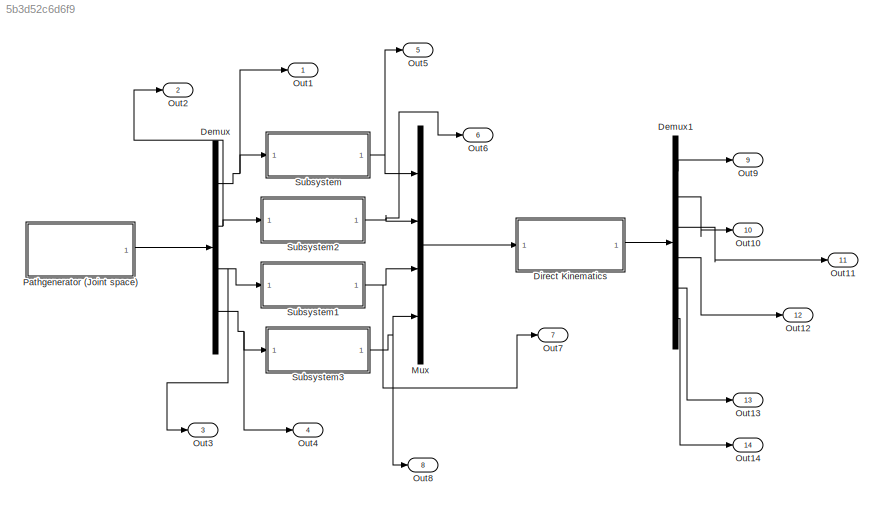
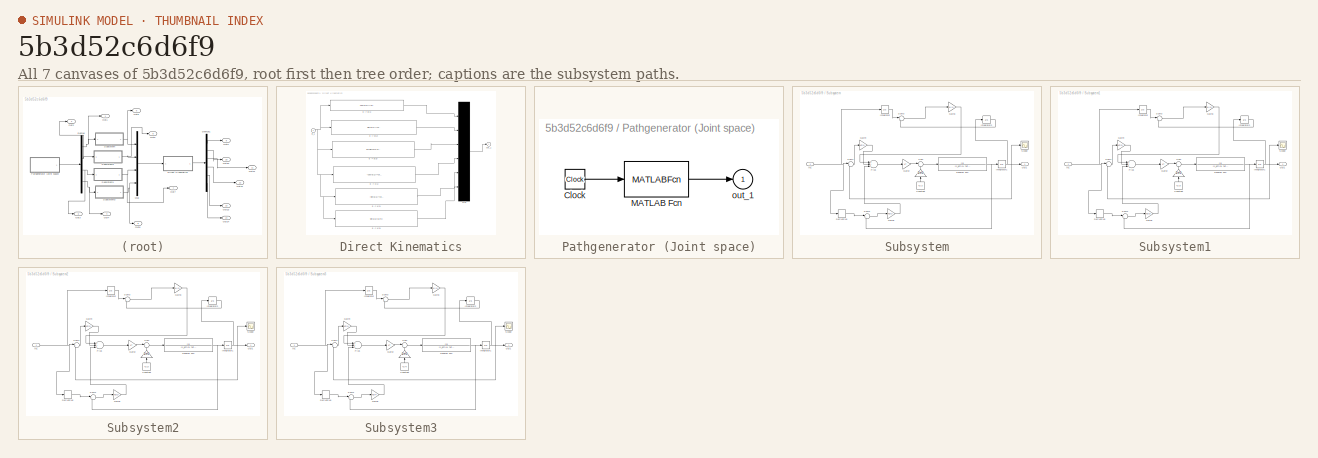
[diagram: thumbnail index - all 7 canvases of the model, root first then tree order]
MODEL slx_5b3d52c6d6f9
KIND model
CONFIG AbsTol = auto
CONFIG EnableMultiTasking = off
CONFIG FixedStep = auto
CONFIG MaxStep = auto
CONFIG MinStep = auto
CONFIG RelTol = 1e-3
CONFIG SampleTimeConstraint = Unconstrained
CONFIG Solver = VariableStepAuto
CONFIG SolverName = VariableStepAuto
CONFIG StartTime = 0.0
CONFIG StopTime = 10.0
BLOCK [Demux] Demux
  DisplayOption = bar
  Ports = [1, 4]
BLOCK [Demux] Demux1
  DisplayOption = bar
  Outputs = 6
  Ports = [1, 6]
BLOCK [SubSystem] Direct Kinematics
  Ports = [1, 1]
  RequestExecContextInheritance = off
  ShowPortLabels = none
BLOCK [Mux] Direct Kinematics/Mux
  Inputs = 6
  Ports = [6, 1]
BLOCK [Inport] Direct Kinematics/in_1
  IconDisplay = Port number
BLOCK [Outport] Direct Kinematics/out_1
  IconDisplay = Port number
  InitialOutput = 0
BLOCK [Fcn] Direct Kinematics/q -> p(1)
  Expr = cos(u[1])*(sin(u[2])*u[3]-a4*cos(u[2]+u[4]) )
BLOCK [Fcn] Direct Kinematics/q -> p(2)
  Expr = sin(u[1])*(sin(u[2])*u[3]-a4*cos(u[2]+u[4]))
BLOCK [Fcn] Direct Kinematics/q -> p(3)
  Expr = a4*sin(u[2]+u[4]) + cos(u[2])*u[3]+d1
BLOCK [Fcn] Direct Kinematics/q -> x(1)
  Expr = -cos(u[1])*cos(u[2]+u[4])
BLOCK [Fcn] Direct Kinematics/q -> x(2)
  Expr = -sin(u[1])*cos(u[2]+u[4])
BLOCK [Fcn] Direct Kinematics/q -> x(3)
  Expr = sin(u[2]+u[4])
BLOCK [Mux] Mux
  DisplayOption = bar
  Ports = [4, 1]
BLOCK [Outport] Out1
  IconDisplay = Port number
BLOCK [Outport] Out10
  IconDisplay = Port number
  Port = 10
BLOCK [Outport] Out11
  IconDisplay = Port number
  Port = 11
BLOCK [Outport] Out12
  IconDisplay = Port number
  Port = 12
BLOCK [Outport] Out13
  IconDisplay = Port number
  Port = 13
BLOCK [Outport] Out14
  IconDisplay = Port number
  Port = 14
BLOCK [Outport] Out2
  IconDisplay = Port number
  Port = 2
BLOCK [Outport] Out3
  IconDisplay = Port number
  Port = 3
BLOCK [Outport] Out4
  IconDisplay = Port number
  Port = 4
BLOCK [Outport] Out5
  IconDisplay = Port number
  Port = 5
BLOCK [Outport] Out6
  IconDisplay = Port number
  Port = 6
BLOCK [Outport] Out7
  IconDisplay = Port number
  Port = 7
BLOCK [Outport] Out8
  IconDisplay = Port number
  Port = 8
BLOCK [Outport] Out9
  IconDisplay = Port number
  Port = 9
BLOCK [SubSystem] Pathgenerator (Joint space)
  Ports = [0, 1]
  RequestExecContextInheritance = off
  ShowPortLabels = none
BLOCK [Clock] Pathgenerator (Joint space)/Clock
BLOCK [MATLABFcn] Pathgenerator (Joint space)/MATLAB Fcn
  MATLABFcn = J_path
  OutputDimensions = 4
  Ports = [1, 1]
BLOCK [Outport] Pathgenerator (Joint space)/out_1
  IconDisplay = Port number
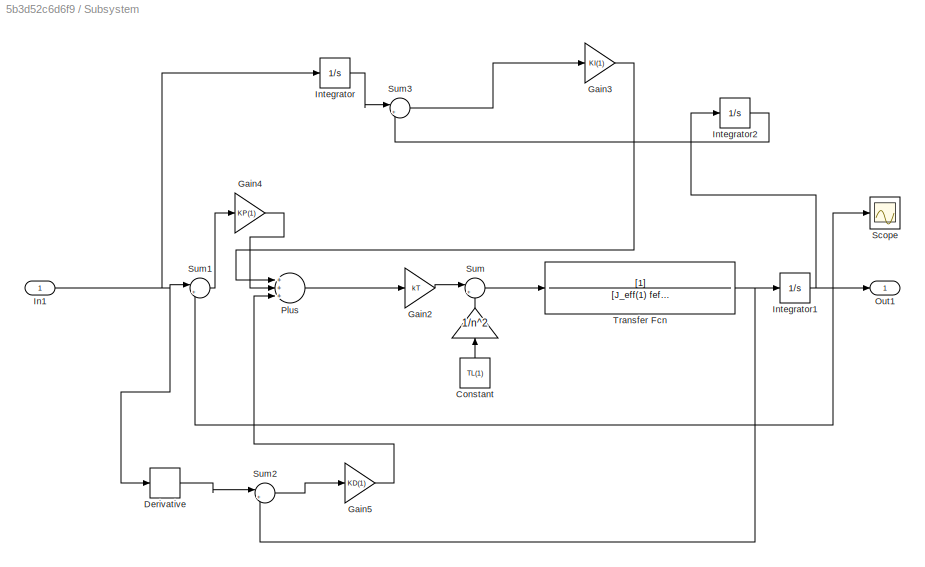
BLOCK [SubSystem] Subsystem
  Ports = [1, 1]
  RequestExecContextInheritance = off
BLOCK [Gain] Subsystem/ 
  Gain = 1/n^2
  OutDataTypeStr = Inherit: Inherit via internal rule
  ParamDataTypeStr = Inherit: Inherit via internal rule
  SaturateOnIntegerOverflow = off
BLOCK [Constant] Subsystem/Constant
  Value = TL(1)
BLOCK [Derivative] Subsystem/Derivative
BLOCK [Gain] Subsystem/Gain2
  Gain = kT
  OutDataTypeStr = Inherit: Inherit via internal rule
  ParamDataTypeStr = Inherit: Inherit via internal rule
  SaturateOnIntegerOverflow = off
BLOCK [Gain] Subsystem/Gain3
  Gain = KI(1)
  OutDataTypeStr = Inherit: Inherit via internal rule
  ParamDataTypeStr = Inherit: Inherit via internal rule
  SaturateOnIntegerOverflow = off
BLOCK [Gain] Subsystem/Gain4
  Gain = KP(1)
  OutDataTypeStr = Inherit: Inherit via internal rule
  ParamDataTypeStr = Inherit: Inherit via internal rule
  SaturateOnIntegerOverflow = off
BLOCK [Gain] Subsystem/Gain5
  Gain = KD(1)
  OutDataTypeStr = Inherit: Inherit via internal rule
  ParamDataTypeStr = Inherit: Inherit via internal rule
  SaturateOnIntegerOverflow = off
BLOCK [Inport] Subsystem/In1
  IconDisplay = Port number
BLOCK [Integrator] Subsystem/Integrator
  Ports = [1, 1]
BLOCK [Integrator] Subsystem/Integrator1
  Ports = [1, 1]
BLOCK [Integrator] Subsystem/Integrator2
  Ports = [1, 1]
BLOCK [Outport] Subsystem/Out1
  IconDisplay = Port number
BLOCK [Sum] Subsystem/Plus
  InputSameDT = off
  Inputs = +++
  OutDataTypeStr = Inherit: Inherit via internal rule
  Ports = [3, 1]
  SaturateOnIntegerOverflow = off
BLOCK [Scope] Subsystem/Scope
  Floating = off
  NumInputPorts = 1
  Ports = [1]
  ScopeSpecificationString = Simulink.scopes.TimeScopeBlockCfg('CurrentConfiguration', extmgr.ConfigurationSet(extmgr.Configuration('Core','General UI',true),extmgr.Configuration('Core','Source UI',true),extmgr.Configuration('Sources','WiredSimulink',true),extmgr.Configuration('Visuals','Time Domain',true,'SerializedDisplays',{struct('MinYLimReal','-0.04969','MaxYLimReal','0.44718','YLabelReal','','MinYLimMag','0.00000','MaxY...<+1373ch>  <repeated x4 — deduplicated; at blocks: Scope>
BLOCK [Sum] Subsystem/Sum
  IconShape = round
  InputSameDT = off
  Inputs = |+-
  OutDataTypeStr = Inherit: Inherit via internal rule
  Ports = [2, 1]
  SaturateOnIntegerOverflow = off
BLOCK [Sum] Subsystem/Sum1
  IconShape = round
  InputSameDT = off
  Inputs = |+-
  OutDataTypeStr = Inherit: Inherit via internal rule
  Ports = [2, 1]
  SaturateOnIntegerOverflow = off
BLOCK [Sum] Subsystem/Sum2
  IconShape = round
  InputSameDT = off
  Inputs = |+-
  OutDataTypeStr = Inherit: Inherit via internal rule
  Ports = [2, 1]
  SaturateOnIntegerOverflow = off
BLOCK [Sum] Subsystem/Sum3
  IconShape = round
  InputSameDT = off
  Inputs = |+-
  OutDataTypeStr = Inherit: Inherit via internal rule
  Ports = [2, 1]
  SaturateOnIntegerOverflow = off
BLOCK [TransferFcn] Subsystem/Transfer Fcn
  Denominator = [J_eff(1) feff]
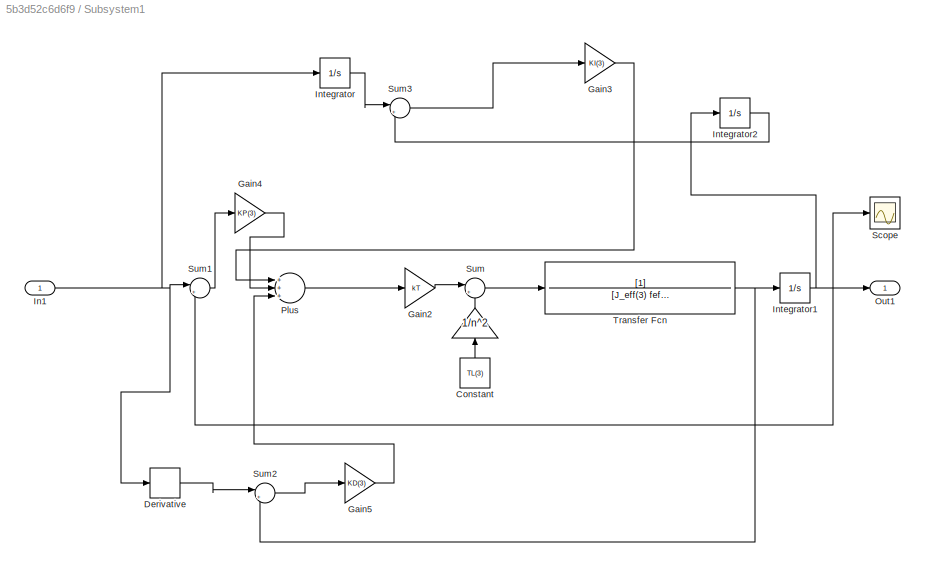
BLOCK [SubSystem] Subsystem1
  Ports = [1, 1]
  RequestExecContextInheritance = off
BLOCK [Gain] Subsystem1/ 
  Gain = 1/n^2
  OutDataTypeStr = Inherit: Inherit via internal rule
  ParamDataTypeStr = Inherit: Inherit via internal rule
  SaturateOnIntegerOverflow = off
BLOCK [Constant] Subsystem1/Constant
  Value = TL(3)
BLOCK [Derivative] Subsystem1/Derivative
BLOCK [Gain] Subsystem1/Gain2
  Gain = kT
  OutDataTypeStr = Inherit: Inherit via internal rule
  ParamDataTypeStr = Inherit: Inherit via internal rule
  SaturateOnIntegerOverflow = off
BLOCK [Gain] Subsystem1/Gain3
  Gain = KI(3)
  OutDataTypeStr = Inherit: Inherit via internal rule
  ParamDataTypeStr = Inherit: Inherit via internal rule
  SaturateOnIntegerOverflow = off
BLOCK [Gain] Subsystem1/Gain4
  Gain = KP(3)
  OutDataTypeStr = Inherit: Inherit via internal rule
  ParamDataTypeStr = Inherit: Inherit via internal rule
  SaturateOnIntegerOverflow = off
BLOCK [Gain] Subsystem1/Gain5
  Gain = KD(3)
  OutDataTypeStr = Inherit: Inherit via internal rule
  ParamDataTypeStr = Inherit: Inherit via internal rule
  SaturateOnIntegerOverflow = off
BLOCK [Inport] Subsystem1/In1
  IconDisplay = Port number
BLOCK [Integrator] Subsystem1/Integrator
  Ports = [1, 1]
BLOCK [Integrator] Subsystem1/Integrator1
  Ports = [1, 1]
BLOCK [Integrator] Subsystem1/Integrator2
  Ports = [1, 1]
BLOCK [Outport] Subsystem1/Out1
  IconDisplay = Port number
BLOCK [Sum] Subsystem1/Plus
  InputSameDT = off
  Inputs = +++
  OutDataTypeStr = Inherit: Inherit via internal rule
  Ports = [3, 1]
  SaturateOnIntegerOverflow = off
BLOCK [Scope] Subsystem1/Scope
  Floating = off
  NumInputPorts = 1
  Ports = [1]
BLOCK [Sum] Subsystem1/Sum
  IconShape = round
  InputSameDT = off
  Inputs = |+-
  OutDataTypeStr = Inherit: Inherit via internal rule
  Ports = [2, 1]
  SaturateOnIntegerOverflow = off
BLOCK [Sum] Subsystem1/Sum1
  IconShape = round
  InputSameDT = off
  Inputs = |+-
  OutDataTypeStr = Inherit: Inherit via internal rule
  Ports = [2, 1]
  SaturateOnIntegerOverflow = off
BLOCK [Sum] Subsystem1/Sum2
  IconShape = round
  InputSameDT = off
  Inputs = |+-
  OutDataTypeStr = Inherit: Inherit via internal rule
  Ports = [2, 1]
  SaturateOnIntegerOverflow = off
BLOCK [Sum] Subsystem1/Sum3
  IconShape = round
  InputSameDT = off
  Inputs = |+-
  OutDataTypeStr = Inherit: Inherit via internal rule
  Ports = [2, 1]
  SaturateOnIntegerOverflow = off
BLOCK [TransferFcn] Subsystem1/Transfer Fcn
  Denominator = [J_eff(3) feff]
BLOCK [SubSystem] Subsystem2
  Ports = [1, 1]
  RequestExecContextInheritance = off
BLOCK [Gain] Subsystem2/ 
  Gain = 1/n^2
  OutDataTypeStr = Inherit: Inherit via internal rule
  ParamDataTypeStr = Inherit: Inherit via internal rule
  SaturateOnIntegerOverflow = off
BLOCK [Constant] Subsystem2/Constant
  Value = TL(2)
BLOCK [Derivative] Subsystem2/Derivative
BLOCK [Gain] Subsystem2/Gain2
  Gain = kT
  OutDataTypeStr = Inherit: Inherit via internal rule
  ParamDataTypeStr = Inherit: Inherit via internal rule
  SaturateOnIntegerOverflow = off
BLOCK [Gain] Subsystem2/Gain3
  Gain = KI(2)
  OutDataTypeStr = Inherit: Inherit via internal rule
  ParamDataTypeStr = Inherit: Inherit via internal rule
  SaturateOnIntegerOverflow = off
BLOCK [Gain] Subsystem2/Gain4
  Gain = KP(2)
  OutDataTypeStr = Inherit: Inherit via internal rule
  ParamDataTypeStr = Inherit: Inherit via internal rule
  SaturateOnIntegerOverflow = off
BLOCK [Gain] Subsystem2/Gain5
  Gain = KD(2)
  OutDataTypeStr = Inherit: Inherit via internal rule
  ParamDataTypeStr = Inherit: Inherit via internal rule
  SaturateOnIntegerOverflow = off
BLOCK [Inport] Subsystem2/In1
  IconDisplay = Port number
BLOCK [Integrator] Subsystem2/Integrator
  Ports = [1, 1]
BLOCK [Integrator] Subsystem2/Integrator1
  Ports = [1, 1]
BLOCK [Integrator] Subsystem2/Integrator2
  Ports = [1, 1]
BLOCK [Outport] Subsystem2/Out1
  IconDisplay = Port number
BLOCK [Sum] Subsystem2/Plus
  InputSameDT = off
  Inputs = +++
  OutDataTypeStr = Inherit: Inherit via internal rule
  Ports = [3, 1]
  SaturateOnIntegerOverflow = off
BLOCK [Scope] Subsystem2/Scope
  Floating = off
  NumInputPorts = 1
  Ports = [1]
BLOCK [Sum] Subsystem2/Sum
  IconShape = round
  InputSameDT = off
  Inputs = |+-
  OutDataTypeStr = Inherit: Inherit via internal rule
  Ports = [2, 1]
  SaturateOnIntegerOverflow = off
BLOCK [Sum] Subsystem2/Sum1
  IconShape = round
  InputSameDT = off
  Inputs = |+-
  OutDataTypeStr = Inherit: Inherit via internal rule
  Ports = [2, 1]
  SaturateOnIntegerOverflow = off
BLOCK [Sum] Subsystem2/Sum2
  IconShape = round
  InputSameDT = off
  Inputs = |+-
  OutDataTypeStr = Inherit: Inherit via internal rule
  Ports = [2, 1]
  SaturateOnIntegerOverflow = off
BLOCK [Sum] Subsystem2/Sum3
  IconShape = round
  InputSameDT = off
  Inputs = |+-
  OutDataTypeStr = Inherit: Inherit via internal rule
  Ports = [2, 1]
  SaturateOnIntegerOverflow = off
BLOCK [TransferFcn] Subsystem2/Transfer Fcn
  Denominator = [J_eff(2) feff]
BLOCK [SubSystem] Subsystem3
  Ports = [1, 1]
  RequestExecContextInheritance = off
BLOCK [Gain] Subsystem3/ 
  Gain = 1/n^2
  OutDataTypeStr = Inherit: Inherit via internal rule
  ParamDataTypeStr = Inherit: Inherit via internal rule
  SaturateOnIntegerOverflow = off
BLOCK [Constant] Subsystem3/Constant
  Value = TL(4)
BLOCK [Derivative] Subsystem3/Derivative
BLOCK [Gain] Subsystem3/Gain2
  Gain = kT
  OutDataTypeStr = Inherit: Inherit via internal rule
  ParamDataTypeStr = Inherit: Inherit via internal rule
  SaturateOnIntegerOverflow = off
BLOCK [Gain] Subsystem3/Gain3
  Gain = KI(4)
  OutDataTypeStr = Inherit: Inherit via internal rule
  ParamDataTypeStr = Inherit: Inherit via internal rule
  SaturateOnIntegerOverflow = off
BLOCK [Gain] Subsystem3/Gain4
  Gain = KP(4)
  OutDataTypeStr = Inherit: Inherit via internal rule
  ParamDataTypeStr = Inherit: Inherit via internal rule
  SaturateOnIntegerOverflow = off
BLOCK [Gain] Subsystem3/Gain5
  Gain = KD(4)
  OutDataTypeStr = Inherit: Inherit via internal rule
  ParamDataTypeStr = Inherit: Inherit via internal rule
  SaturateOnIntegerOverflow = off
BLOCK [Inport] Subsystem3/In1
  IconDisplay = Port number
BLOCK [Integrator] Subsystem3/Integrator
  Ports = [1, 1]
BLOCK [Integrator] Subsystem3/Integrator1
  Ports = [1, 1]
BLOCK [Integrator] Subsystem3/Integrator2
  Ports = [1, 1]
BLOCK [Outport] Subsystem3/Out1
  IconDisplay = Port number
BLOCK [Sum] Subsystem3/Plus
  InputSameDT = off
  Inputs = +++
  OutDataTypeStr = Inherit: Inherit via internal rule
  Ports = [3, 1]
  SaturateOnIntegerOverflow = off
BLOCK [Scope] Subsystem3/Scope
  Floating = off
  NumInputPorts = 1
  Ports = [1]
BLOCK [Sum] Subsystem3/Sum
  IconShape = round
  InputSameDT = off
  Inputs = |+-
  OutDataTypeStr = Inherit: Inherit via internal rule
  Ports = [2, 1]
  SaturateOnIntegerOverflow = off
BLOCK [Sum] Subsystem3/Sum1
  IconShape = round
  InputSameDT = off
  Inputs = |+-
  OutDataTypeStr = Inherit: Inherit via internal rule
  Ports = [2, 1]
  SaturateOnIntegerOverflow = off
BLOCK [Sum] Subsystem3/Sum2
  IconShape = round
  InputSameDT = off
  Inputs = |+-
  OutDataTypeStr = Inherit: Inherit via internal rule
  Ports = [2, 1]
  SaturateOnIntegerOverflow = off
BLOCK [Sum] Subsystem3/Sum3
  IconShape = round
  InputSameDT = off
  Inputs = |+-
  OutDataTypeStr = Inherit: Inherit via internal rule
  Ports = [2, 1]
  SaturateOnIntegerOverflow = off
BLOCK [TransferFcn] Subsystem3/Transfer Fcn
  Denominator = [J_eff(4) feff]
LINE Demux1:1 -> Out9:1
LINE Demux1:2 -> Out10:1
LINE Demux1:3 -> Out11:1
LINE Demux1:4 -> Out12:1
LINE Demux1:5 -> Out13:1
LINE Demux1:6 -> Out14:1
NET Demux:1 -> Out1:1, Subsystem:1
NET Demux:2 -> Out2:1, Subsystem2:1
NET Demux:3 -> Out3:1, Subsystem1:1
NET Demux:4 -> Out4:1, Subsystem3:1
LINE Direct Kinematics/Mux:1 -> Direct Kinematics/out_1:1
NET Direct Kinematics/in_1:1 -> Direct Kinematics/q -> p(1):1, Direct Kinematics/q -> p(2):1, Direct Kinematics/q -> p(3):1, Direct Kinematics/q -> x(1):1, Direct Kinematics/q -> x(2):1, Direct Kinematics/q -> x(3):1
LINE Direct Kinematics/q -> p(1):1 -> Direct Kinematics/Mux:1
LINE Direct Kinematics/q -> p(2):1 -> Direct Kinematics/Mux:2
LINE Direct Kinematics/q -> p(3):1 -> Direct Kinematics/Mux:3
LINE Direct Kinematics/q -> x(1):1 -> Direct Kinematics/Mux:4
LINE Direct Kinematics/q -> x(2):1 -> Direct Kinematics/Mux:5
LINE Direct Kinematics/q -> x(3):1 -> Direct Kinematics/Mux:6
LINE Direct Kinematics:1 -> Demux1:1
LINE Mux:1 -> Direct Kinematics:1
LINE Pathgenerator (Joint space)/Clock:1 -> Pathgenerator (Joint space)/MATLAB Fcn:1
LINE Pathgenerator (Joint space)/MATLAB Fcn:1 -> Pathgenerator (Joint space)/out_1:1
LINE Pathgenerator (Joint space):1 -> Demux:1
LINE Subsystem/ :1 -> Subsystem/Sum:2
LINE Subsystem/Constant:1 -> Subsystem/ :1
LINE Subsystem/Derivative:1 -> Subsystem/Sum2:1
LINE Subsystem/Gain2:1 -> Subsystem/Sum:1
LINE Subsystem/Gain3:1 -> Subsystem/Plus:1
LINE Subsystem/Gain4:1 -> Subsystem/Plus:2
LINE Subsystem/Gain5:1 -> Subsystem/Plus:3
NET Subsystem/In1:1 -> Subsystem/Derivative:1, Subsystem/Integrator:1, Subsystem/Sum1:1
NET Subsystem/Integrator1:1 -> Subsystem/Integrator2:1, Subsystem/Out1:1, Subsystem/Scope:1, Subsystem/Sum1:2
LINE Subsystem/Integrator2:1 -> Subsystem/Sum3:2
LINE Subsystem/Integrator:1 -> Subsystem/Sum3:1
LINE Subsystem/Plus:1 -> Subsystem/Gain2:1
LINE Subsystem/Sum1:1 -> Subsystem/Gain4:1
LINE Subsystem/Sum2:1 -> Subsystem/Gain5:1
LINE Subsystem/Sum3:1 -> Subsystem/Gain3:1
LINE Subsystem/Sum:1 -> Subsystem/Transfer Fcn:1
NET Subsystem/Transfer Fcn:1 -> Subsystem/Integrator1:1, Subsystem/Sum2:2
LINE Subsystem1/ :1 -> Subsystem1/Sum:2
LINE Subsystem1/Constant:1 -> Subsystem1/ :1
LINE Subsystem1/Derivative:1 -> Subsystem1/Sum2:1
LINE Subsystem1/Gain2:1 -> Subsystem1/Sum:1
LINE Subsystem1/Gain3:1 -> Subsystem1/Plus:1
LINE Subsystem1/Gain4:1 -> Subsystem1/Plus:2
LINE Subsystem1/Gain5:1 -> Subsystem1/Plus:3
NET Subsystem1/In1:1 -> Subsystem1/Derivative:1, Subsystem1/Integrator:1, Subsystem1/Sum1:1
NET Subsystem1/Integrator1:1 -> Subsystem1/Integrator2:1, Subsystem1/Out1:1, Subsystem1/Scope:1, Subsystem1/Sum1:2
LINE Subsystem1/Integrator2:1 -> Subsystem1/Sum3:2
LINE Subsystem1/Integrator:1 -> Subsystem1/Sum3:1
LINE Subsystem1/Plus:1 -> Subsystem1/Gain2:1
LINE Subsystem1/Sum1:1 -> Subsystem1/Gain4:1
LINE Subsystem1/Sum2:1 -> Subsystem1/Gain5:1
LINE Subsystem1/Sum3:1 -> Subsystem1/Gain3:1
LINE Subsystem1/Sum:1 -> Subsystem1/Transfer Fcn:1
NET Subsystem1/Transfer Fcn:1 -> Subsystem1/Integrator1:1, Subsystem1/Sum2:2
NET Subsystem1:1 -> Mux:3, Out7:1
LINE Subsystem2/ :1 -> Subsystem2/Sum:2
LINE Subsystem2/Constant:1 -> Subsystem2/ :1
LINE Subsystem2/Derivative:1 -> Subsystem2/Sum2:1
LINE Subsystem2/Gain2:1 -> Subsystem2/Sum:1
LINE Subsystem2/Gain3:1 -> Subsystem2/Plus:1
LINE Subsystem2/Gain4:1 -> Subsystem2/Plus:2
LINE Subsystem2/Gain5:1 -> Subsystem2/Plus:3
NET Subsystem2/In1:1 -> Subsystem2/Derivative:1, Subsystem2/Integrator:1, Subsystem2/Sum1:1
NET Subsystem2/Integrator1:1 -> Subsystem2/Integrator2:1, Subsystem2/Out1:1, Subsystem2/Scope:1, Subsystem2/Sum1:2
LINE Subsystem2/Integrator2:1 -> Subsystem2/Sum3:2
LINE Subsystem2/Integrator:1 -> Subsystem2/Sum3:1
LINE Subsystem2/Plus:1 -> Subsystem2/Gain2:1
LINE Subsystem2/Sum1:1 -> Subsystem2/Gain4:1
LINE Subsystem2/Sum2:1 -> Subsystem2/Gain5:1
LINE Subsystem2/Sum3:1 -> Subsystem2/Gain3:1
LINE Subsystem2/Sum:1 -> Subsystem2/Transfer Fcn:1
NET Subsystem2/Transfer Fcn:1 -> Subsystem2/Integrator1:1, Subsystem2/Sum2:2
NET Subsystem2:1 -> Mux:2, Out6:1
LINE Subsystem3/ :1 -> Subsystem3/Sum:2
LINE Subsystem3/Constant:1 -> Subsystem3/ :1
LINE Subsystem3/Derivative:1 -> Subsystem3/Sum2:1
LINE Subsystem3/Gain2:1 -> Subsystem3/Sum:1
LINE Subsystem3/Gain3:1 -> Subsystem3/Plus:1
LINE Subsystem3/Gain4:1 -> Subsystem3/Plus:2
LINE Subsystem3/Gain5:1 -> Subsystem3/Plus:3
NET Subsystem3/In1:1 -> Subsystem3/Derivative:1, Subsystem3/Integrator:1, Subsystem3/Sum1:1
NET Subsystem3/Integrator1:1 -> Subsystem3/Integrator2:1, Subsystem3/Out1:1, Subsystem3/Scope:1, Subsystem3/Sum1:2
LINE Subsystem3/Integrator2:1 -> Subsystem3/Sum3:2
LINE Subsystem3/Integrator:1 -> Subsystem3/Sum3:1
LINE Subsystem3/Plus:1 -> Subsystem3/Gain2:1
LINE Subsystem3/Sum1:1 -> Subsystem3/Gain4:1
LINE Subsystem3/Sum2:1 -> Subsystem3/Gain5:1
LINE Subsystem3/Sum3:1 -> Subsystem3/Gain3:1
LINE Subsystem3/Sum:1 -> Subsystem3/Transfer Fcn:1
NET Subsystem3/Transfer Fcn:1 -> Subsystem3/Integrator1:1, Subsystem3/Sum2:2
NET Subsystem3:1 -> Mux:4, Out8:1
NET Subsystem:1 -> Mux:1, Out5:1
note: NET lines group one-source signal fan-out (src -> all destinations, sorted); 1:1 wires keep LINE
